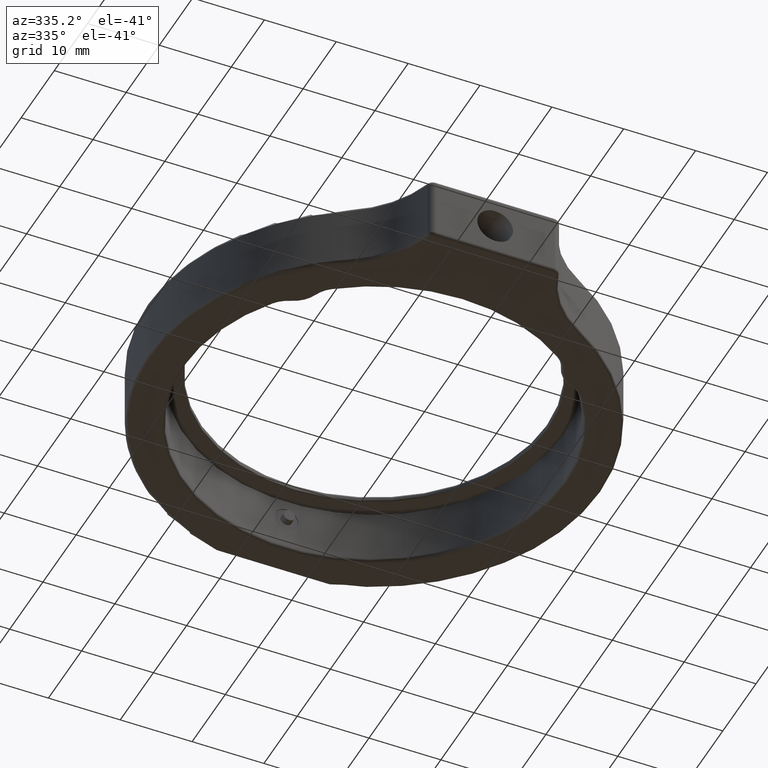
[diagram: clean part render]
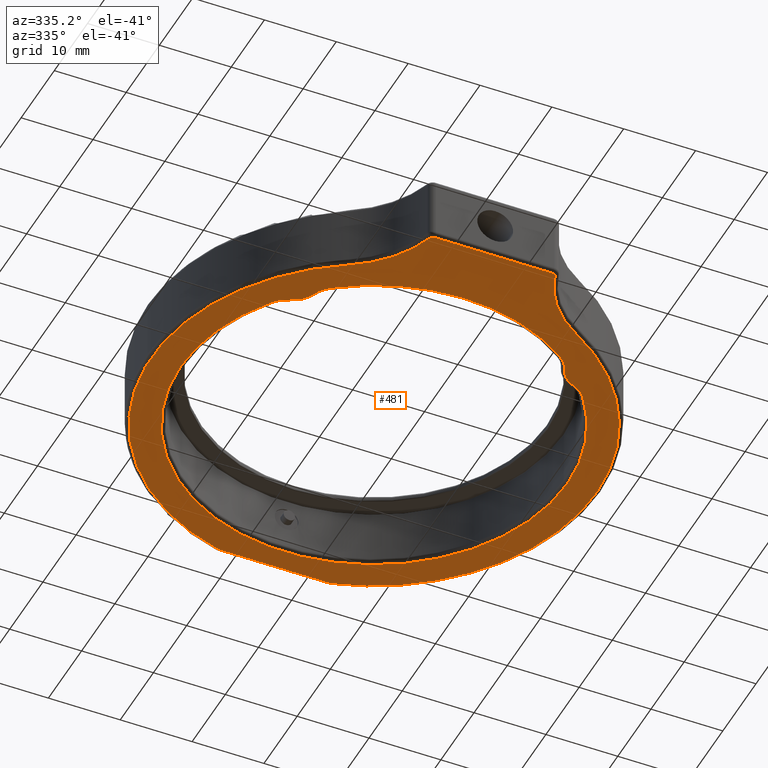
[diagram: same view with one face highlighted and labeled with its STEP entity id]
A machine part, auxiliary view. The second image highlights one B-rep face of the part: STEP entity #481.
In plain terms, the highlighted planar face has unit normal (-0, 0, 1).
Its self-contained STEP definition (entity closure, byte-faithful):
#2 = DIRECTION ( 'NONE',  ( -0.0000000000000000000, 0.0000000000000000000, 1.000000000000000000 ) ) ;
#7 = EDGE_CURVE ( 'NONE', #1271, #1264, #183, .T. ) ;
#44 = CIRCLE ( 'NONE', #372, 31.00000000000000000 ) ;
#97 = VERTEX_POINT ( 'NONE', #1190 ) ;
#113 = DIRECTION ( 'NONE',  ( 0.0000000000000000000, -0.0000000000000000000, -1.000000000000000000 ) ) ;
#122 = CARTESIAN_POINT ( 'NONE',  ( 0.2540132211835028900, -20.26564745931403500, 7.276297619984717400E-012 ) ) ;
#123 = VERTEX_POINT ( 'NONE', #151 ) ;
#133 = DIRECTION ( 'NONE',  ( -0.0000000000000000000, 0.0000000000000000000, 1.000000000000000000 ) ) ;
#148 = CIRCLE ( 'NONE', #1860, 3.500000000000005300 ) ;
#151 = CARTESIAN_POINT ( 'NONE',  ( -10.93607767024026800, 6.458849838114656600, 7.276514460419214500E-012 ) ) ;
#164 = AXIS2_PLACEMENT_3D ( 'NONE', #1660, #799, #2531 ) ;
#165 = VERTEX_POINT ( 'NONE', #122 ) ;
#183 = CIRCLE ( 'NONE', #2139, 26.90000000000000600 ) ;
#197 = EDGE_CURVE ( 'NONE', #2163, #263, #44, .T. ) ;
#208 = CIRCLE ( 'NONE', #903, 4.500000000000003600 ) ;
#263 = VERTEX_POINT ( 'NONE', #1042 ) ;
#284 = FACE_BOUND ( 'NONE', #1980, .T. ) ;
#295 = VERTEX_POINT ( 'NONE', #2554 ) ;
#297 = VERTEX_POINT ( 'NONE', #1911 ) ;
#319 = CARTESIAN_POINT ( 'NONE',  ( 7.727521134655825500, -29.04115016188534400, 7.276297619984717400E-012 ) ) ;
#355 = ORIENTED_EDGE ( 'NONE', *, *, #762, .T. ) ;
#361 = ORIENTED_EDGE ( 'NONE', *, *, #2230, .T. ) ;
#372 = AXIS2_PLACEMENT_3D ( 'NONE', #811, #113, #2261 ) ;
#408 = CARTESIAN_POINT ( 'NONE',  ( 23.83793020377155600, 36.45884983811464500, 7.276297619984717400E-012 ) ) ;
#447 = EDGE_CURVE ( 'NONE', #123, #665, #1598, .T. ) ;
#481 = ADVANCED_FACE ( 'NONE', ( #284, #626 ), #1066, .F. ) ;
#492 = EDGE_CURVE ( 'NONE', #2338, #602, #699, .T. ) ;
#499 = ORIENTED_EDGE ( 'NONE', *, *, #1242, .T. ) ;
#501 = CARTESIAN_POINT ( 'NONE',  ( 42.86392232975974500, 6.458849838114653100, 7.276514460419214500E-012 ) ) ;
#503 = CARTESIAN_POINT ( 'NONE',  ( -2.078526767282554000, -6.816316096088863600, 7.276297619984717400E-012 ) ) ;
#510 = CARTESIAN_POINT ( 'NONE',  ( 39.52878599262410100, -33.62789610802838100, 7.276297619984717400E-012 ) ) ;
#517 = CARTESIAN_POINT ( 'NONE',  ( 24.20032352486365900, -29.54115016188535800, 7.276297619984717400E-012 ) ) ;
#541 = ORIENTED_EDGE ( 'NONE', *, *, #2643, .T. ) ;
#544 = DIRECTION ( 'NONE',  ( 1.000000000000000000, 0.0000000000000000000, 0.0000000000000000000 ) ) ;
#553 = CIRCLE ( 'NONE', #2515, 31.00000000000000000 ) ;
#580 = DIRECTION ( 'NONE',  ( 0.0000000000000000000, -0.0000000000000000000, -1.000000000000000000 ) ) ;
#602 = VERTEX_POINT ( 'NONE', #501 ) ;
#626 = FACE_OUTER_BOUND ( 'NONE', #1543, .T. ) ;
#636 = EDGE_CURVE ( 'NONE', #1038, #2690, #2496, .T. ) ;
#645 = DIRECTION ( 'NONE',  ( 1.000000000000000000, -0.0000000000000000000, 0.0000000000000000000 ) ) ;
#659 = DIRECTION ( 'NONE',  ( 1.000000000000000000, 0.0000000000000000000, 0.0000000000000000000 ) ) ;
#665 = VERTEX_POINT ( 'NONE', #2481 ) ;
#669 = AXIS2_PLACEMENT_3D ( 'NONE', #2207, #1547, #1753 ) ;
#688 = CARTESIAN_POINT ( 'NONE',  ( 15.96392232975974000, 6.458849838114653100, 7.276297619984717400E-012 ) ) ;
#699 = CIRCLE ( 'NONE', #669, 26.90000000000000600 ) ;
#735 = AXIS2_PLACEMENT_3D ( 'NONE', #1200, #133, #2485 ) ;
#741 = ORIENTED_EDGE ( 'NONE', *, *, #636, .T. ) ;
#762 = EDGE_CURVE ( 'NONE', #295, #1614, #148, .T. ) ;
#781 = ORIENTED_EDGE ( 'NONE', *, *, #2248, .T. ) ;
#784 = VERTEX_POINT ( 'NONE', #1642 ) ;
#799 = DIRECTION ( 'NONE',  ( 0.0000000000000000000, -0.0000000000000000000, -1.000000000000000000 ) ) ;
#811 = CARTESIAN_POINT ( 'NONE',  ( 15.96392232975974000, 6.458849838114653100, 7.276297619984717400E-012 ) ) ;
#817 = DIRECTION ( 'NONE',  ( 1.000000000000000000, 0.0000000000000000000, 0.0000000000000000000 ) ) ;
#843 = ORIENTED_EDGE ( 'NONE', *, *, #492, .T. ) ;
#848 = DIRECTION ( 'NONE',  ( 1.000000000000000000, 8.953411488912552700E-016, 0.0000000000000000000 ) ) ;
#868 = CARTESIAN_POINT ( 'NONE',  ( 15.96392232975974000, 6.458849838114653100, 7.276297619984717400E-012 ) ) ;
#877 = ORIENTED_EDGE ( 'NONE', *, *, #2519, .T. ) ;
#903 = AXIS2_PLACEMENT_3D ( 'NONE', #2676, #1619, #544 ) ;
#910 = DIRECTION ( 'NONE',  ( 1.000000000000000000, 0.0000000000000000000, 0.0000000000000000000 ) ) ;
#915 = AXIS2_PLACEMENT_3D ( 'NONE', #2572, #1290, #659 ) ;
#929 = EDGE_CURVE ( 'NONE', #665, #295, #931, .T. ) ;
#931 = CIRCLE ( 'NONE', #1622, 4.500000000000003600 ) ;
#933 = CARTESIAN_POINT ( 'NONE',  ( 37.63097057576143100, -9.483202109656543800, 7.276297619984717400E-012 ) ) ;
#940 = DIRECTION ( 'NONE',  ( -0.0000000000000000000, 0.0000000000000000000, 1.000000000000000000 ) ) ;
#985 = ORIENTED_EDGE ( 'NONE', *, *, #197, .T. ) ;
#1010 = CARTESIAN_POINT ( 'NONE',  ( 2.688756395556166600, -11.58359925892760200, 7.276297619984717400E-012 ) ) ;
#1022 = VECTOR ( 'NONE', #645, 1000.000000000000000 ) ;
#1038 = VERTEX_POINT ( 'NONE', #1599 ) ;
#1042 = CARTESIAN_POINT ( 'NONE',  ( 31.67383143833599100, -20.26564745931402800, 7.276297619984717400E-012 ) ) ;
#1066 = PLANE ( 'NONE',  #1487 ) ;
#1082 = CARTESIAN_POINT ( 'NONE',  ( 15.96392232975974000, 6.458849838114653100, 7.276297619984717400E-012 ) ) ;
#1101 = EDGE_CURVE ( 'NONE', #1264, #297, #208, .T. ) ;
#1108 = CARTESIAN_POINT ( 'NONE',  ( 15.96392232975974000, 6.458849838114653100, 7.276297619984717400E-012 ) ) ;
#1119 = DIRECTION ( 'NONE',  ( -0.0000000000000000000, 0.0000000000000000000, 1.000000000000000000 ) ) ;
#1121 = CIRCLE ( 'NONE', #164, 31.00000000000000000 ) ;
#1182 = ORIENTED_EDGE ( 'NONE', *, *, #447, .T. ) ;
#1190 = CARTESIAN_POINT ( 'NONE',  ( 35.55127220358829700, -11.04281365197189200, 7.276297619984717400E-012 ) ) ;
#1200 = CARTESIAN_POINT ( 'NONE',  ( 34.00637142680204100, -6.816316096088861800, 7.276297619984717400E-012 ) ) ;
#1218 = CIRCLE ( 'NONE', #735, 4.500000000000003600 ) ;
#1242 = EDGE_CURVE ( 'NONE', #1614, #1271, #2732, .T. ) ;
#1264 = VERTEX_POINT ( 'NONE', #2063 ) ;
#1271 = VERTEX_POINT ( 'NONE', #2500 ) ;
#1290 = DIRECTION ( 'NONE',  ( -0.0000000000000000000, 0.0000000000000000000, 1.000000000000000000 ) ) ;
#1388 = DIRECTION ( 'NONE',  ( 1.000000000000000000, 5.451988067355674400E-015, 0.0000000000000000000 ) ) ;
#1390 = DIRECTION ( 'NONE',  ( 1.000000000000000000, 0.0000000000000000000, 0.0000000000000000000 ) ) ;
#1391 = CIRCLE ( 'NONE', #2076, 3.500000000000003100 ) ;
#1424 = CARTESIAN_POINT ( 'NONE',  ( 36.75286169664427400, -14.33008952876980600, 7.276297619984717400E-012 ) ) ;
#1433 = ORIENTED_EDGE ( 'NONE', *, *, #1874, .T. ) ;
#1445 = DIRECTION ( 'NONE',  ( 1.000000000000000000, 0.0000000000000000000, 0.0000000000000000000 ) ) ;
#1461 = DIRECTION ( 'NONE',  ( -1.000000000000000000, -0.0000000000000000000, -0.0000000000000000000 ) ) ;
#1474 = ORIENTED_EDGE ( 'NONE', *, *, #1101, .T. ) ;
#1481 = CIRCLE ( 'NONE', #2499, 26.90000000000000600 ) ;
#1487 = AXIS2_PLACEMENT_3D ( 'NONE', #1108, #1119, #1537 ) ;
#1514 = AXIS2_PLACEMENT_3D ( 'NONE', #510, #2205, #2404 ) ;
#1518 = DIRECTION ( 'NONE',  ( 1.000000000000000000, 0.0000000000000000000, 0.0000000000000000000 ) ) ;
#1537 = DIRECTION ( 'NONE',  ( 1.000000000000000000, 0.0000000000000000000, 0.0000000000000000000 ) ) ;
#1543 = EDGE_LOOP ( 'NONE', ( #361, #2417, #541, #1433, #985, #2472, #2765, #877, #741 ) ) ;
#1547 = DIRECTION ( 'NONE',  ( -0.0000000000000000000, 0.0000000000000000000, 1.000000000000000000 ) ) ;
#1553 = LINE ( 'NONE', #2081, #2655 ) ;
#1558 = EDGE_CURVE ( 'NONE', #263, #1782, #2103, .T. ) ;
#1598 = CIRCLE ( 'NONE', #2241, 26.90000000000000600 ) ;
#1599 = CARTESIAN_POINT ( 'NONE',  ( 7.727521134655825500, -29.54115016188536600, 7.276297619984717400E-012 ) ) ;
#1614 = VERTEX_POINT ( 'NONE', #1615 ) ;
#1615 = CARTESIAN_POINT ( 'NONE',  ( -1.537741160326868500, -13.12850003571384700, 7.276297619984717400E-012 ) ) ;
#1619 = DIRECTION ( 'NONE',  ( -0.0000000000000000000, 0.0000000000000000000, 1.000000000000000000 ) ) ;
#1622 = AXIS2_PLACEMENT_3D ( 'NONE', #503, #940, #1996 ) ;
#1642 = CARTESIAN_POINT ( 'NONE',  ( 8.153672653853089300, 36.45884983811464500, 7.276297619984717400E-012 ) ) ;
#1650 = ORIENTED_EDGE ( 'NONE', *, *, #7, .T. ) ;
#1656 = AXIS2_PLACEMENT_3D ( 'NONE', #319, #2675, #1390 ) ;
#1660 = CARTESIAN_POINT ( 'NONE',  ( 15.96392232975974000, 6.458849838114653100, 7.276297619984717400E-012 ) ) ;
#1689 = EDGE_CURVE ( 'NONE', #297, #97, #1391, .T. ) ;
#1736 = EDGE_CURVE ( 'NONE', #165, #784, #1121, .T. ) ;
#1753 = DIRECTION ( 'NONE',  ( 1.000000000000000000, 0.0000000000000000000, 0.0000000000000000000 ) ) ;
#1782 = VERTEX_POINT ( 'NONE', #2300 ) ;
#1854 = ORIENTED_EDGE ( 'NONE', *, *, #2385, .T. ) ;
#1860 = AXIS2_PLACEMENT_3D ( 'NONE', #2498, #580, #2723 ) ;
#1874 = EDGE_CURVE ( 'NONE', #2090, #2163, #553, .T. ) ;
#1907 = CARTESIAN_POINT ( 'NONE',  ( 15.96392232975974000, 6.458849838114653100, 7.276297619984717400E-012 ) ) ;
#1911 = CARTESIAN_POINT ( 'NONE',  ( 33.46558581984635300, -13.12850003571384000, 7.276297619984717400E-012 ) ) ;
#1969 = CARTESIAN_POINT ( 'NONE',  ( 23.77417200566638700, 36.45884983811464500, 7.276297619984717400E-012 ) ) ;
#1980 = EDGE_LOOP ( 'NONE', ( #2447, #1854, #843, #781, #1182, #2377, #355, #499, #1650, #1474 ) ) ;
#1996 = DIRECTION ( 'NONE',  ( 1.000000000000000000, 0.0000000000000000000, 0.0000000000000000000 ) ) ;
#2047 = CIRCLE ( 'NONE', #915, 15.49999999999999600 ) ;
#2063 = CARTESIAN_POINT ( 'NONE',  ( 31.90597427753100100, -15.20819840788699100, 7.276297619984717400E-012 ) ) ;
#2076 = AXIS2_PLACEMENT_3D ( 'NONE', #1424, #2674, #1388 ) ;
#2081 = CARTESIAN_POINT ( 'NONE',  ( 15.96392232975974000, -29.54115016188536600, 7.276297619984717400E-012 ) ) ;
#2090 = VERTEX_POINT ( 'NONE', #1969 ) ;
#2103 = CIRCLE ( 'NONE', #1514, 15.49999999999999300 ) ;
#2125 = DIRECTION ( 'NONE',  ( 0.0000000000000000000, -0.0000000000000000000, -1.000000000000000000 ) ) ;
#2139 = AXIS2_PLACEMENT_3D ( 'NONE', #688, #2640, #910 ) ;
#2163 = VERTEX_POINT ( 'NONE', #2459 ) ;
#2205 = DIRECTION ( 'NONE',  ( -0.0000000000000000000, 0.0000000000000000000, 1.000000000000000000 ) ) ;
#2207 = CARTESIAN_POINT ( 'NONE',  ( 15.96392232975974000, 6.458849838114653100, 7.276297619984717400E-012 ) ) ;
#2213 = LINE ( 'NONE', #408, #1022 ) ;
#2230 = EDGE_CURVE ( 'NONE', #2690, #165, #2047, .T. ) ;
#2241 = AXIS2_PLACEMENT_3D ( 'NONE', #868, #2, #1518 ) ;
#2248 = EDGE_CURVE ( 'NONE', #602, #123, #1481, .T. ) ;
#2261 = DIRECTION ( 'NONE',  ( 1.000000000000000000, 0.0000000000000000000, 0.0000000000000000000 ) ) ;
#2300 = CARTESIAN_POINT ( 'NONE',  ( 24.67933797698118100, -29.18448597270231600, 7.276297619984717400E-012 ) ) ;
#2314 = DIRECTION ( 'NONE',  ( 0.0000000000000000000, -0.0000000000000000000, -1.000000000000000000 ) ) ;
#2332 = VERTEX_POINT ( 'NONE', #517 ) ;
#2338 = VERTEX_POINT ( 'NONE', #933 ) ;
#2360 = DIRECTION ( 'NONE',  ( -0.0000000000000000000, 0.0000000000000000000, 1.000000000000000000 ) ) ;
#2377 = ORIENTED_EDGE ( 'NONE', *, *, #929, .T. ) ;
#2385 = EDGE_CURVE ( 'NONE', #97, #2338, #1218, .T. ) ;
#2404 = DIRECTION ( 'NONE',  ( 1.000000000000000000, 0.0000000000000000000, 0.0000000000000000000 ) ) ;
#2417 = ORIENTED_EDGE ( 'NONE', *, *, #1736, .T. ) ;
#2447 = ORIENTED_EDGE ( 'NONE', *, *, #1689, .T. ) ;
#2459 = CARTESIAN_POINT ( 'NONE',  ( 46.96392232975974000, 6.458849838114653100, 7.276297619984717400E-012 ) ) ;
#2472 = ORIENTED_EDGE ( 'NONE', *, *, #1558, .T. ) ;
#2481 = CARTESIAN_POINT ( 'NONE',  ( -5.703125916241960500, -9.483202109656533100, 7.276297619984717400E-012 ) ) ;
#2485 = DIRECTION ( 'NONE',  ( 1.000000000000000000, 0.0000000000000000000, 0.0000000000000000000 ) ) ;
#2490 = DIRECTION ( 'NONE',  ( -0.0000000000000000000, 0.0000000000000000000, 1.000000000000000000 ) ) ;
#2496 = CIRCLE ( 'NONE', #1656, 0.5000000000000125500 ) ;
#2498 = CARTESIAN_POINT ( 'NONE',  ( -4.825017037124790200, -14.33008952876980900, 7.276297619984717400E-012 ) ) ;
#2499 = AXIS2_PLACEMENT_3D ( 'NONE', #1082, #2360, #2782 ) ;
#2500 = CARTESIAN_POINT ( 'NONE',  ( 0.02187038198848620400, -15.20819840788699100, 7.276297619984717400E-012 ) ) ;
#2515 = AXIS2_PLACEMENT_3D ( 'NONE', #1907, #2125, #848 ) ;
#2519 = EDGE_CURVE ( 'NONE', #2332, #1038, #1553, .T. ) ;
#2524 = CIRCLE ( 'NONE', #2692, 0.5000000000000108800 ) ;
#2531 = DIRECTION ( 'NONE',  ( 1.000000000000000000, 0.0000000000000000000, 0.0000000000000000000 ) ) ;
#2532 = EDGE_CURVE ( 'NONE', #1782, #2332, #2524, .T. ) ;
#2554 = CARTESIAN_POINT ( 'NONE',  ( -3.623427544068806000, -11.04281365197189900, 7.276297619984717400E-012 ) ) ;
#2572 = CARTESIAN_POINT ( 'NONE',  ( -7.600941333104613000, -33.62789610802838100, 7.276297619984717400E-012 ) ) ;
#2640 = DIRECTION ( 'NONE',  ( -0.0000000000000000000, 0.0000000000000000000, 1.000000000000000000 ) ) ;
#2643 = EDGE_CURVE ( 'NONE', #784, #2090, #2213, .T. ) ;
#2655 = VECTOR ( 'NONE', #1461, 1000.000000000000000 ) ;
#2660 = AXIS2_PLACEMENT_3D ( 'NONE', #1010, #2490, #817 ) ;
#2674 = DIRECTION ( 'NONE',  ( 0.0000000000000000000, -0.0000000000000000000, -1.000000000000000000 ) ) ;
#2675 = DIRECTION ( 'NONE',  ( 0.0000000000000000000, -0.0000000000000000000, -1.000000000000000000 ) ) ;
#2676 = CARTESIAN_POINT ( 'NONE',  ( 29.23908826396332100, -11.58359925892760200, 7.276297619984717400E-012 ) ) ;
#2690 = VERTEX_POINT ( 'NONE', #2789 ) ;
#2692 = AXIS2_PLACEMENT_3D ( 'NONE', #2735, #2314, #1445 ) ;
#2723 = DIRECTION ( 'NONE',  ( 1.000000000000000000, 1.982541115402062200E-015, 0.0000000000000000000 ) ) ;
#2732 = CIRCLE ( 'NONE', #2660, 4.500000000000003600 ) ;
#2735 = CARTESIAN_POINT ( 'NONE',  ( 24.20032352486365900, -29.04115016188534400, 7.276297619984717400E-012 ) ) ;
#2765 = ORIENTED_EDGE ( 'NONE', *, *, #2532, .T. ) ;
#2782 = DIRECTION ( 'NONE',  ( 1.000000000000000000, 0.0000000000000000000, 0.0000000000000000000 ) ) ;
#2789 = CARTESIAN_POINT ( 'NONE',  ( 7.248506682538300400, -29.18448597270231600, 7.276297619984717400E-012 ) ) ;